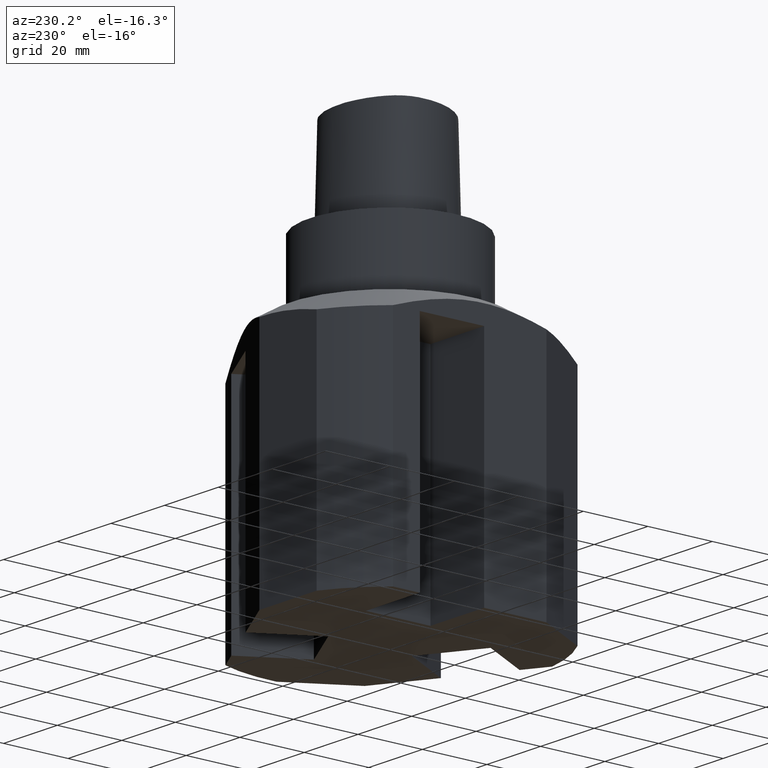
[diagram: clean part render]
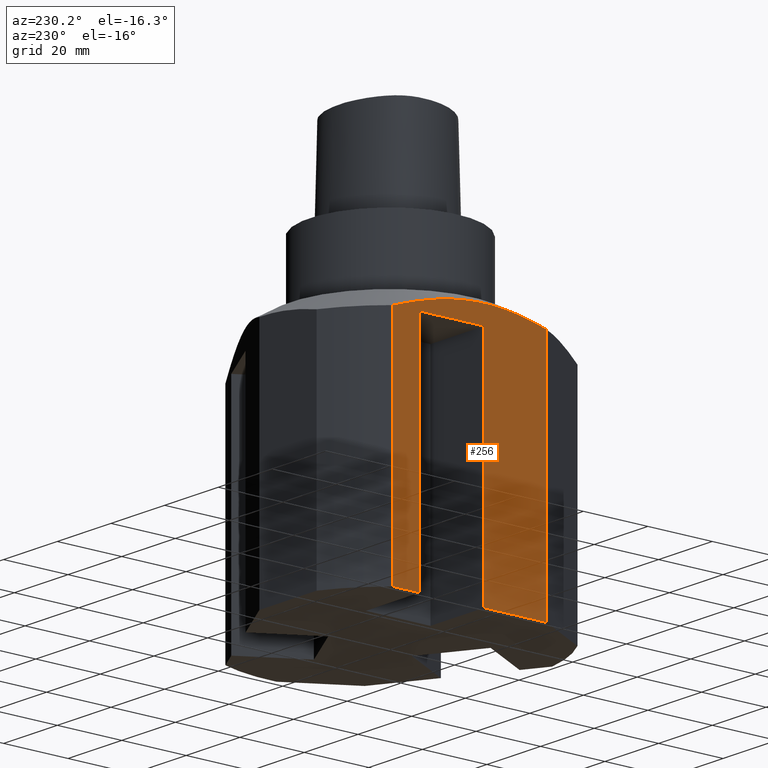
[diagram: same view with one face highlighted and labeled with its STEP entity id]
A machine part, auxiliary view. The second image highlights one B-rep face of the part: STEP entity #256.
In plain terms, the highlighted planar face has unit normal (1, -0, -0).
Its self-contained STEP definition (entity closure, byte-faithful):
#143=EDGE_CURVE('240[2]',#396,#397,#398,.T.);
#181=EDGE_CURVE('240[2]',#397,#456,#457,.T.);
#227=EDGE_CURVE('240[2]',#521,#418,#522,.T.);
#229=EDGE_CURVE('240[2]',#524,#525,#526,.F.);
#256=ADVANCED_FACE('240[2]',(#557),#558,.F.);
#278=EDGE_CURVE('240[2]',#525,#418,#584,.T.);
#280=EDGE_CURVE('240[2]',#396,#524,#586,.T.);
#302=EDGE_CURVE('240[2]',#521,#548,#612,.T.);
#330=EDGE_CURVE('240[2]',#456,#548,#645,.T.);
#396=VERTEX_POINT('',#718);
#397=VERTEX_POINT('',#719);
#398=LINE('',#720,#721);
#418=VERTEX_POINT('',#752);
#456=VERTEX_POINT('',#874);
#457=LINE('',#875,#876);
#521=VERTEX_POINT('',#1067);
#522=LINE('',#1068,#1069);
#524=VERTEX_POINT('',#1072);
#525=VERTEX_POINT('',#1073);
#526=LINE('',#1074,#1075);
#548=VERTEX_POINT('',#1496);
#557=FACE_OUTER_BOUND('',#1526,.T.);
#558=PLANE('',#1527);
#584=(B_SPLINE_CURVE(3,(#1588,#1589,#1590,#1591,#1592,#1593,#1594,#1595,#1596,#1597),.UNSPECIFIED.,.F.,.F.)B_SPLINE_CURVE_WITH_KNOTS((4,3,3,4),(-0.0701450685802136,2.44845535964196,44.6118598380873,50.2285192789122),.UNSPECIFIED.)RATIONAL_B_SPLINE_CURVE((1.0,1.0,1.0,1.0,1.1244176482899,1.14955333864921,1.07540707107796,1.07540707107796,1.07540707107796,1.07540707107796))BOUNDED_CURVE()REPRESENTATION_ITEM('')GEOMETRIC_REPRESENTATION_ITEM()CURVE());
#586=LINE('',#1606,#1607);
#612=LINE('',#1646,#1647);
#645=LINE('',#1731,#1732);
#718=CARTESIAN_POINT('',(-35.0000000000004,19.9999999999999,-99.9999999999999));
#719=CARTESIAN_POINT('',(-35.0000000000004,19.9999999999999,-29.9999987706541));
#720=CARTESIAN_POINT('',(-35.0000000000004,19.9999999999999,-261.0));
#721=VECTOR('',#1803,1.0);
#752=CARTESIAN_POINT('',(-35.0000000000002,-19.3782217350844,-27.1998706638656));
#874=CARTESIAN_POINT('',(-35.0000000000001,-5.6843418860808E-014,-29.9999987706542));
#875=CARTESIAN_POINT('',(-35.0000000000002,7.81974584871855,-29.9999987706541));
#876=VECTOR('',#1860,1.0);
#1067=CARTESIAN_POINT('',(-35.0000000000002,-19.3782217350844,-99.9999999999999));
#1068=CARTESIAN_POINT('',(-35.0000000000002,-19.3782217350844,-261.0));
#1069=VECTOR('',#1922,1.0);
#1072=CARTESIAN_POINT('',(-35.0000000000002,28.2842712474617,-99.9999999999999));
#1073=CARTESIAN_POINT('',(-35.0000000000002,28.2842712474617,-30.0829021630708));
#1074=CARTESIAN_POINT('',(-35.0000000000002,28.2842712474617,-63.0414510815353));
#1075=VECTOR('',#1923,1.0);
#1496=CARTESIAN_POINT('',(-35.0000000000001,-5.6843418860808E-014,-99.9999999999999));
#1526=EDGE_LOOP('',(#1947,#1948,#1949,#1950,#1951,#1952,#1953,#1954));
#1527=AXIS2_PLACEMENT_3D('',#1955,#1956,#1957);
#1588=CARTESIAN_POINT('',(-35.0000000000002,28.2842712474617,-30.0829021630708));
#1589=CARTESIAN_POINT('',(-35.0000000000002,27.2862600087645,-29.7207364910171));
#1590=CARTESIAN_POINT('',(-35.0000000000002,26.2901536193802,-29.3708683954087));
#1591=CARTESIAN_POINT('',(-35.0000000000002,25.298221281347,-29.0353842587268));
#1592=CARTESIAN_POINT('',(-35.0,10.5299115094499,-24.0405540025621));
#1593=CARTESIAN_POINT('',(-35.0000000000001,-1.40766378960363,-23.1627441798846));
#1594=CARTESIAN_POINT('',(-34.9999999999999,-14.0192378864619,-25.8701519957368));
#1595=CARTESIAN_POINT('',(-35.0,-15.8150791915659,-26.2556768119199));
#1596=CARTESIAN_POINT('',(-35.0000000000002,-17.6031734332232,-26.703468656755));
#1597=CARTESIAN_POINT('',(-35.0000000000002,-19.3782217350844,-27.1998706638656));
#1606=CARTESIAN_POINT('',(-34.9999999999999,-7.43025415128088,-99.9999999999999));
#1607=VECTOR('',#1981,1.0);
#1646=CARTESIAN_POINT('',(-34.9999999999999,-7.43025415128088,-99.9999999999999));
#1647=VECTOR('',#2018,1.0);
#1731=CARTESIAN_POINT('',(-35.0000000000001,-8.5265128291212E-014,-261.0));
#1732=VECTOR('',#2060,1.0);
#1803=DIRECTION('',(6.12323399573677E-017,1.22464679914735E-016,1.0));
#1860=DIRECTION('',(1.57808419096604E-014,-1.0,-5.56187720616607E-015));
#1922=DIRECTION('',(6.12323399571206E-017,1.22464679915163E-016,1.0));
#1923=DIRECTION('',(-6.12323399573677E-017,-1.22464679914735E-016,-1.0));
#1947=ORIENTED_EDGE('',*,*,#143,.T.);
#1948=ORIENTED_EDGE('',*,*,#181,.T.);
#1949=ORIENTED_EDGE('',*,*,#330,.T.);
#1950=ORIENTED_EDGE('',*,*,#302,.F.);
#1951=ORIENTED_EDGE('',*,*,#227,.T.);
#1952=ORIENTED_EDGE('',*,*,#278,.F.);
#1953=ORIENTED_EDGE('',*,*,#229,.F.);
#1954=ORIENTED_EDGE('',*,*,#280,.F.);
#1955=CARTESIAN_POINT('',(-35.0000000000002,5.63949169743879,-261.0));
#1956=DIRECTION('',(1.0,-9.66297876621902E-031,-6.12323399571206E-017));
#1957=DIRECTION('',(0.0,1.0,-1.57808419096604E-014));
#1981=DIRECTION('',(-1.57808419096604E-014,1.0,-1.22464679914734E-016));
#2018=DIRECTION('',(-1.57808419096604E-014,1.0,-1.22464679914734E-016));
#2060=DIRECTION('',(-6.12323399573677E-017,-1.22464679914735E-016,-1.0));